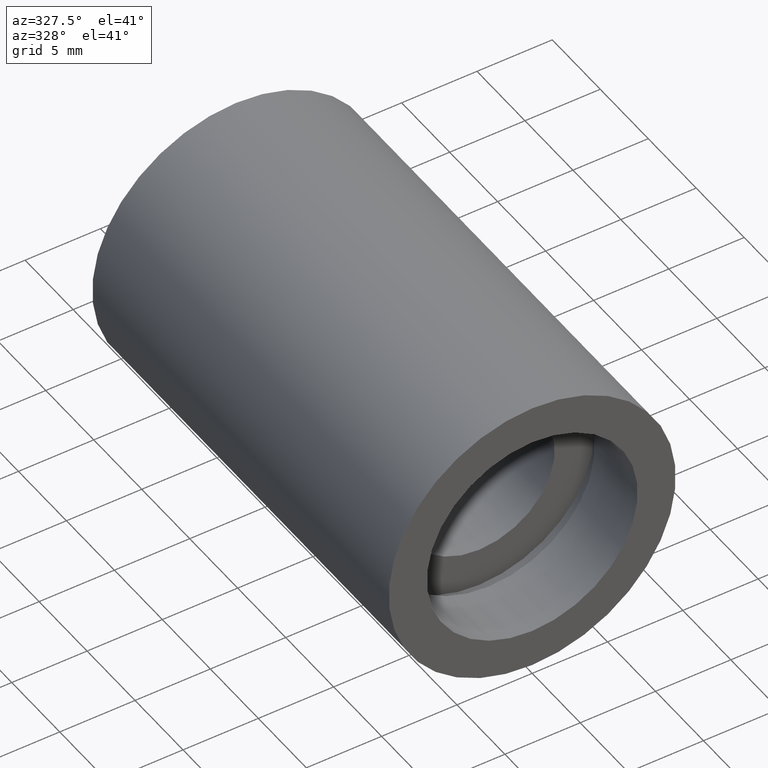
[diagram: clean part render]
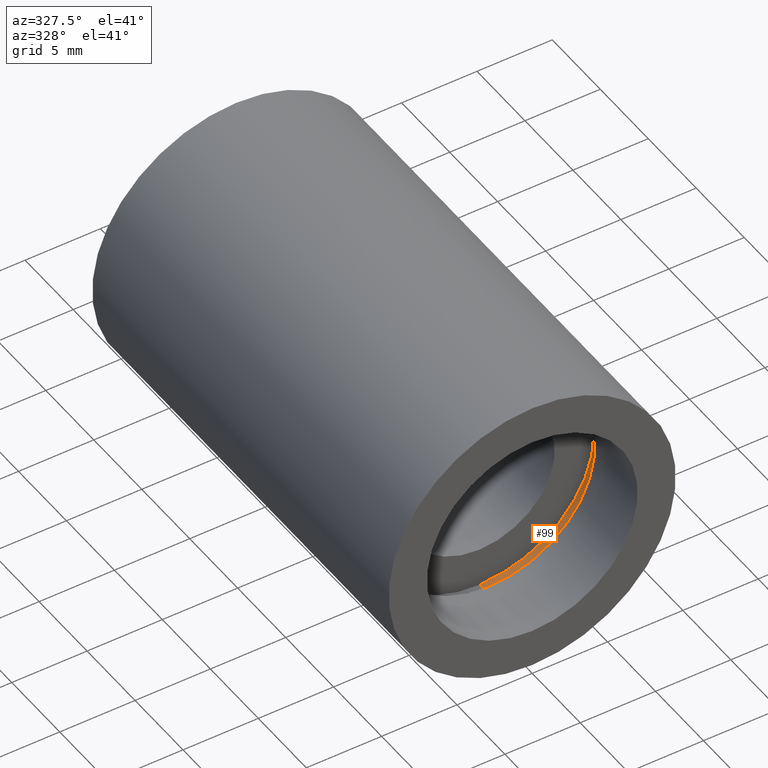
[diagram: same view with one face highlighted and labeled with its STEP entity id]
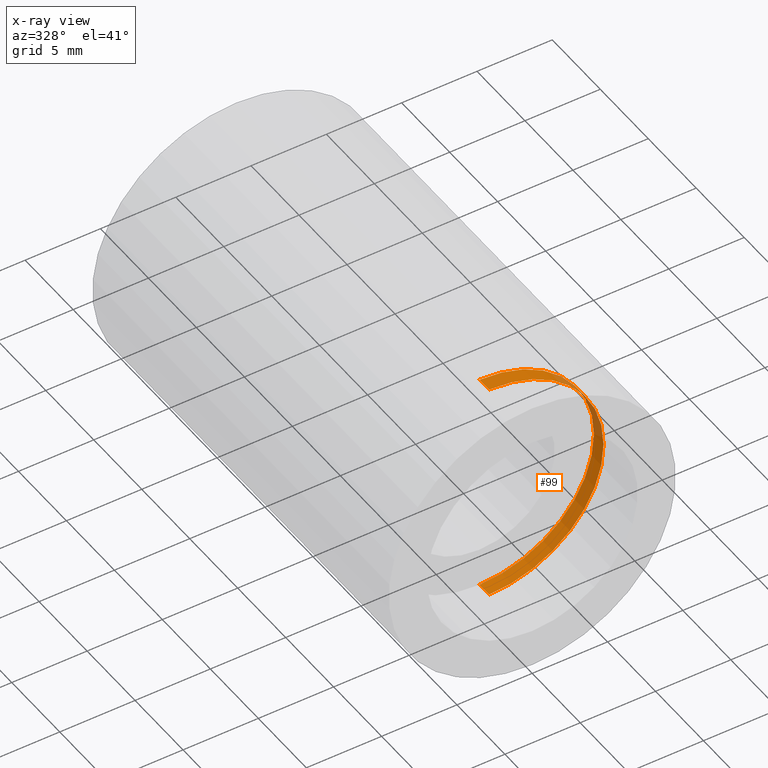
[diagram: x-ray of the same camera — body ghosted, the highlighted face saturated]
A machine part, auxiliary view. The second image highlights one B-rep face of the part: STEP entity #99.
The next image is the same camera in x-ray: the body ghosted, the highlighted face saturated — about 10% of this face is hidden behind the body in this view.
In plain terms, the highlighted cylindrical surface (partial cylindrical patch) has radius 7.6 mm, axis along (-0, 1, -0).
Its self-contained STEP definition (entity closure, byte-faithful):
#12 = CARTESIAN_POINT ( 'NONE',  ( 9.307315673519907200E-016, 4.499999999999976000, -7.600000000000019200 ) ) ;
#17 = CARTESIAN_POINT ( 'NONE',  ( 0.0000000000000000000, 5.499999999999976900, 7.600000000000019200 ) ) ;
#18 = DIRECTION ( 'NONE',  ( 0.0000000000000000000, 0.0000000000000000000, 1.000000000000000000 ) ) ;
#52 = VERTEX_POINT ( 'NONE', #603 ) ;
#62 = CARTESIAN_POINT ( 'NONE',  ( 0.0000000000000000000, 4.499999999999976000, 0.0000000000000000000 ) ) ;
#67 = CARTESIAN_POINT ( 'NONE',  ( 0.0000000000000000000, 4.499999999999976000, 7.600000000000019200 ) ) ;
#99 = ADVANCED_FACE ( 'NONE', ( #504 ), #528, .F. ) ;
#126 = LINE ( 'NONE', #343, #357 ) ;
#134 = AXIS2_PLACEMENT_3D ( 'NONE', #544, #262, #18 ) ;
#143 = CARTESIAN_POINT ( 'NONE',  ( 0.0000000000000000000, 161.3761669434274500, 7.600000000000019200 ) ) ;
#144 = DIRECTION ( 'NONE',  ( -0.0000000000000000000, 1.000000000000000000, -0.0000000000000000000 ) ) ;
#158 = DIRECTION ( 'NONE',  ( -0.0000000000000000000, 1.000000000000000000, -0.0000000000000000000 ) ) ;
#193 = EDGE_CURVE ( 'NONE', #429, #388, #390, .T. ) ;
#242 = DIRECTION ( 'NONE',  ( 0.0000000000000000000, 0.0000000000000000000, 1.000000000000000000 ) ) ;
#262 = DIRECTION ( 'NONE',  ( -0.0000000000000000000, 1.000000000000000000, -0.0000000000000000000 ) ) ;
#283 = CIRCLE ( 'NONE', #552, 7.600000000000019200 ) ;
#285 = DIRECTION ( 'NONE',  ( -0.0000000000000000000, 1.000000000000000000, -0.0000000000000000000 ) ) ;
#295 = VERTEX_POINT ( 'NONE', #12 ) ;
#296 = AXIS2_PLACEMENT_3D ( 'NONE', #622, #144, #242 ) ;
#330 = ORIENTED_EDGE ( 'NONE', *, *, #342, .F. ) ;
#339 = ORIENTED_EDGE ( 'NONE', *, *, #433, .F. ) ;
#341 = DIRECTION ( 'NONE',  ( 0.0000000000000000000, 0.0000000000000000000, 1.000000000000000000 ) ) ;
#342 = EDGE_CURVE ( 'NONE', #429, #295, #283, .T. ) ;
#343 = CARTESIAN_POINT ( 'NONE',  ( 9.307315673519907200E-016, 161.3761669434274500, -7.600000000000019200 ) ) ;
#357 = VECTOR ( 'NONE', #542, 1000.000000000000000 ) ;
#363 = EDGE_LOOP ( 'NONE', ( #339, #330, #485, #617 ) ) ;
#388 = VERTEX_POINT ( 'NONE', #17 ) ;
#390 = LINE ( 'NONE', #143, #619 ) ;
#429 = VERTEX_POINT ( 'NONE', #67 ) ;
#433 = EDGE_CURVE ( 'NONE', #295, #52, #126, .T. ) ;
#461 = CIRCLE ( 'NONE', #134, 7.600000000000019200 ) ;
#485 = ORIENTED_EDGE ( 'NONE', *, *, #193, .T. ) ;
#487 = EDGE_CURVE ( 'NONE', #388, #52, #461, .T. ) ;
#504 = FACE_OUTER_BOUND ( 'NONE', #363, .T. ) ;
#528 = CYLINDRICAL_SURFACE ( 'NONE', #296, 7.600000000000019200 ) ;
#542 = DIRECTION ( 'NONE',  ( -0.0000000000000000000, 1.000000000000000000, -0.0000000000000000000 ) ) ;
#544 = CARTESIAN_POINT ( 'NONE',  ( 0.0000000000000000000, 5.499999999999976900, 0.0000000000000000000 ) ) ;
#552 = AXIS2_PLACEMENT_3D ( 'NONE', #62, #158, #341 ) ;
#603 = CARTESIAN_POINT ( 'NONE',  ( 9.307315673519907200E-016, 5.499999999999976900, -7.600000000000019200 ) ) ;
#617 = ORIENTED_EDGE ( 'NONE', *, *, #487, .T. ) ;
#619 = VECTOR ( 'NONE', #285, 1000.000000000000000 ) ;
#622 = CARTESIAN_POINT ( 'NONE',  ( 0.0000000000000000000, 161.3761669434274500, 0.0000000000000000000 ) ) ;